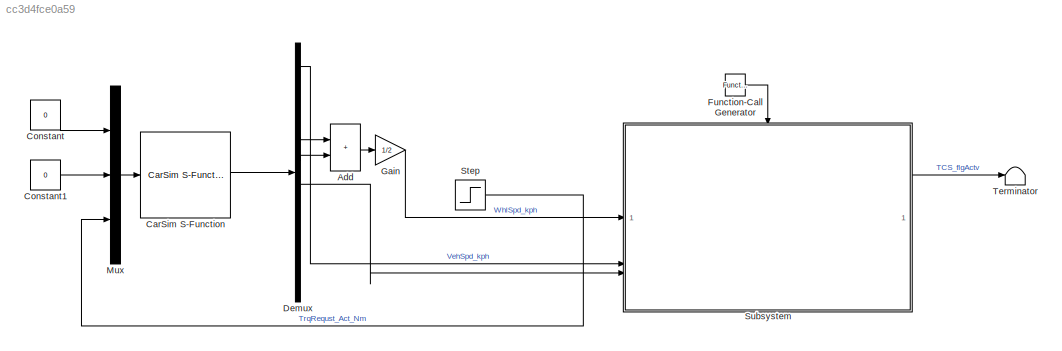
MODEL slx_cc3d4fce0a59
KIND model
CONFIG AbsTol = auto
CONFIG EnableMultiTasking = off
CONFIG FixedStep = 0.01
CONFIG MaxStep = auto
CONFIG MinStep = auto
CONFIG RelTol = 1e-3
CONFIG SampleTimeConstraint = Unconstrained
CONFIG SolverName = FixedStepDiscrete
CONFIG StartTime = 0.0
CONFIG StopTime = 10.0
BLOCK [Sum] Add
  IconShape = rectangular
BLOCK [Reference] CarSim S-Function  REF=Solver_SF/CarSim S-Function
  Priority = 1
  SourceBlock = Solver_SF/CarSim S-Function
  SourceProductName = CarSim S-Function
  SourceType = Vehicle math model library
BLOCK [Constant] Constant
  Value = 0
BLOCK [Constant] Constant1
  Value = 0
BLOCK [Demux] Demux
  Outputs = 10
BLOCK [Reference] Function-Call Generator  REF=simulink/Ports &
Subsystems/Function-Call
Generator
  SourceBlock = simulink/Ports &\nSubsystems/Function-Call\nGenerator
  SourceType = Function-Call Generator
BLOCK [Gain] Gain
  Gain = 1/2
BLOCK [Mux] Mux
  DisplayOption = bar
  Inputs = 3
BLOCK [Step] Step
  After = 80
  SampleTime = 0
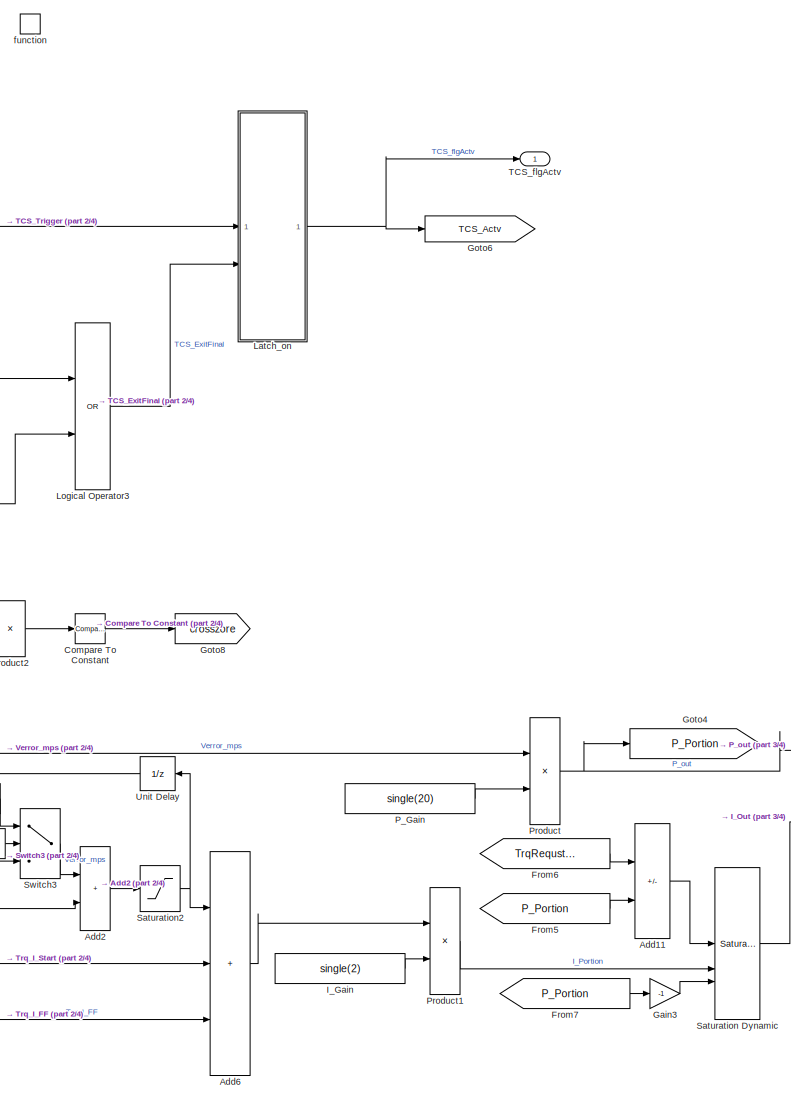
[diagram: Subsystem - part 1/4, center side, full height]
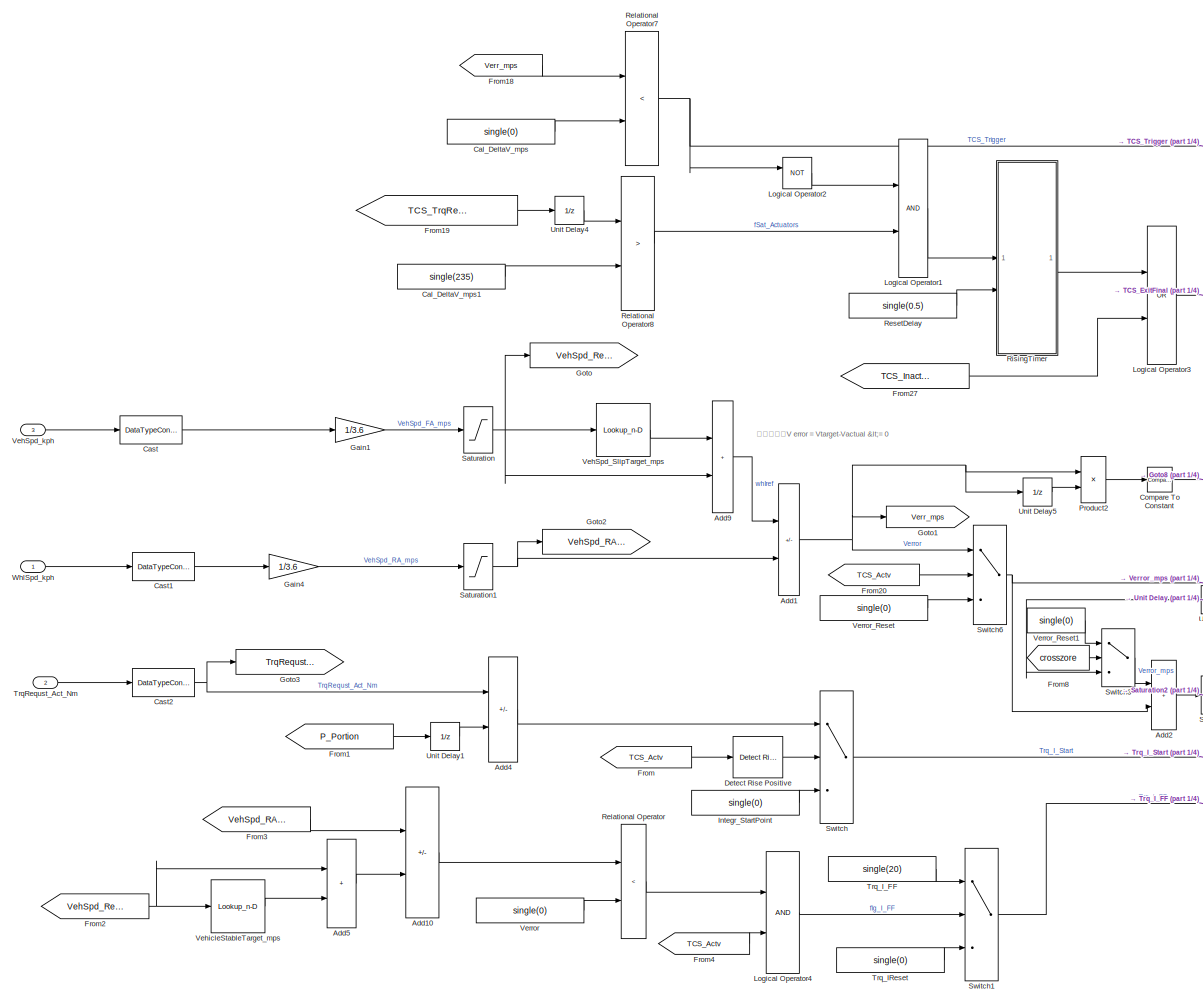
[diagram: Subsystem - part 2/4, left side, full height]
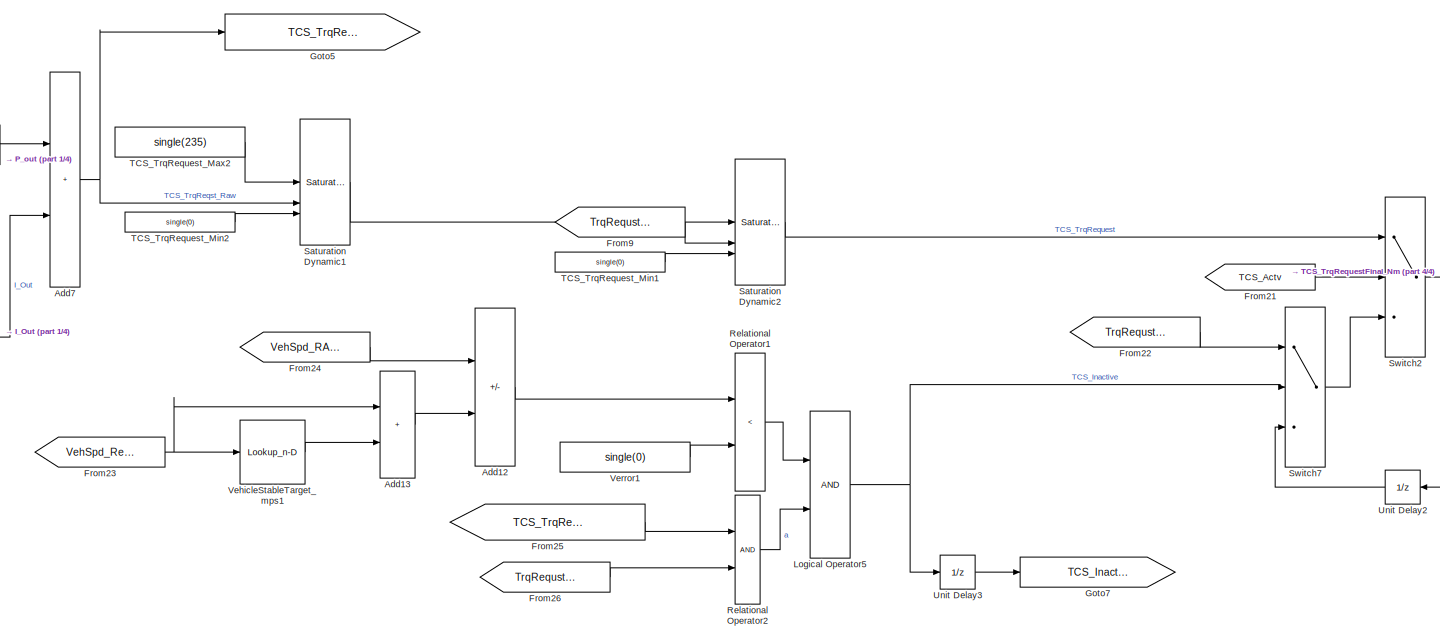
[diagram: Subsystem - part 3/4, bottom right region]
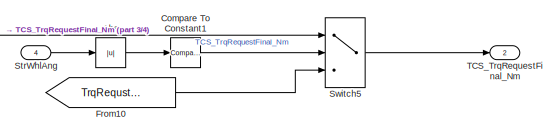
[diagram: Subsystem - part 4/4, bottom right region]
BLOCK [SubSystem] Subsystem
BLOCK [Abs] Subsystem/Abs
  SaturateOnIntegerOverflow = off
BLOCK [Sum] Subsystem/Add1
  IconShape = rectangular
  Inputs = +-
BLOCK [Sum] Subsystem/Add10
  IconShape = rectangular
  Inputs = +-
BLOCK [Sum] Subsystem/Add11
  IconShape = rectangular
  Inputs = +-
BLOCK [Sum] Subsystem/Add12
  IconShape = rectangular
  Inputs = +-
BLOCK [Sum] Subsystem/Add13
  IconShape = rectangular
BLOCK [Sum] Subsystem/Add2
  IconShape = rectangular
BLOCK [Sum] Subsystem/Add4
  IconShape = rectangular
  Inputs = +-
BLOCK [Sum] Subsystem/Add5
  IconShape = rectangular
BLOCK [Sum] Subsystem/Add6
  IconShape = rectangular
  Inputs = +++
BLOCK [Sum] Subsystem/Add7
  IconShape = rectangular
BLOCK [Sum] Subsystem/Add9
  IconShape = rectangular
BLOCK [Constant] Subsystem/Cal_DeltaV_mps
  Value = single(0)
BLOCK [Constant] Subsystem/Cal_DeltaV_mps1
  Value = single(235)
BLOCK [DataTypeConversion] Subsystem/Cast
  OutDataTypeStr = single
  RndMeth = Floor
  SaturateOnIntegerOverflow = off
BLOCK [DataTypeConversion] Subsystem/Cast1
  OutDataTypeStr = single
  RndMeth = Floor
  SaturateOnIntegerOverflow = off
BLOCK [DataTypeConversion] Subsystem/Cast2
  OutDataTypeStr = single
  RndMeth = Floor
  SaturateOnIntegerOverflow = off
BLOCK [Reference] Subsystem/Compare To Constant  REF=simulink/Logic and Bit
Operations/Compare
To Constant
  SourceBlock = simulink/Logic and Bit\nOperations/Compare\nTo Constant
  SourceType = Compare To Constant
BLOCK [Reference] Subsystem/Compare To Constant1  REF=simulink/Logic and Bit
Operations/Compare
To Constant
  SourceBlock = simulink/Logic and Bit\nOperations/Compare\nTo Constant
  SourceType = Compare To Constant
BLOCK [Reference] Subsystem/Detect Rise Positive  REF=simulink/Logic and Bit
Operations/Detect Rise
Positive
  SourceBlock = simulink/Logic and Bit\nOperations/Detect Rise\nPositive
  SourceType = Detect Rise Positive
BLOCK [From] Subsystem/From
  GotoTag = TCS_Actv
BLOCK [From] Subsystem/From1
  GotoTag = P_Portion
BLOCK [From] Subsystem/From10
  GotoTag = TrqRequst_Act_Nm
BLOCK [From] Subsystem/From18
  GotoTag = Verr_mps
BLOCK [From] Subsystem/From19
  GotoTag = TCS_TrqReqstRaw_Nm
BLOCK [From] Subsystem/From2
  GotoTag = VehSpd_Ref_mps
BLOCK [From] Subsystem/From20
  GotoTag = TCS_Actv
BLOCK [From] Subsystem/From21
  GotoTag = TCS_Actv
BLOCK [From] Subsystem/From22
  GotoTag = TrqRequst_Act_Nm
BLOCK [From] Subsystem/From23
  GotoTag = VehSpd_Ref_mps
BLOCK [From] Subsystem/From24
  GotoTag = VehSpd_RA_mps
BLOCK [From] Subsystem/From25
  GotoTag = TCS_TrqReqstRaw_Nm
BLOCK [From] Subsystem/From26
  GotoTag = TrqRequst_Act_Nm
BLOCK [From] Subsystem/From27
  GotoTag = TCS_Inactive
BLOCK [From] Subsystem/From3
  GotoTag = VehSpd_RA_mps
BLOCK [From] Subsystem/From4
  GotoTag = TCS_Actv
BLOCK [From] Subsystem/From5
  GotoTag = P_Portion
BLOCK [From] Subsystem/From6
  GotoTag = TrqRequst_Act_Nm
BLOCK [From] Subsystem/From7
  GotoTag = P_Portion
BLOCK [From] Subsystem/From8
  GotoTag = crosszore
BLOCK [From] Subsystem/From9
  GotoTag = TrqRequst_Act_Nm
BLOCK [Gain] Subsystem/Gain1
  Gain = 1/3.6
BLOCK [Gain] Subsystem/Gain3
  Gain = -1
BLOCK [Gain] Subsystem/Gain4
  Gain = 1/3.6
BLOCK [Goto] Subsystem/Goto
  GotoTag = VehSpd_Ref_mps
BLOCK [Goto] Subsystem/Goto1
  GotoTag = Verr_mps
BLOCK [Goto] Subsystem/Goto2
  GotoTag = VehSpd_RA_mps
BLOCK [Goto] Subsystem/Goto3
  GotoTag = TrqRequst_Act_Nm
BLOCK [Goto] Subsystem/Goto4
  GotoTag = P_Portion
BLOCK [Goto] Subsystem/Goto5
  GotoTag = TCS_TrqReqstRaw_Nm
BLOCK [Goto] Subsystem/Goto6
  GotoTag = TCS_Actv
BLOCK [Goto] Subsystem/Goto7
  GotoTag = TCS_Inactive
BLOCK [Goto] Subsystem/Goto8
  GotoTag = crosszore
BLOCK [Constant] Subsystem/I_Gain
  Value = single(2)
BLOCK [Constant] Subsystem/Integr_StartPoint
  Value = single(0)
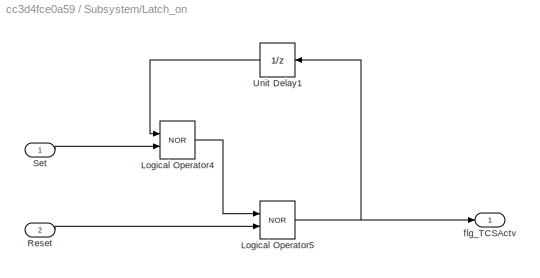
BLOCK [SubSystem] Subsystem/Latch_on
BLOCK [Logic] Subsystem/Latch_on/Logical Operator4
  AllPortsSameDT = off
  Operator = NOR
  OutDataTypeStr = boolean
BLOCK [Logic] Subsystem/Latch_on/Logical Operator5
  AllPortsSameDT = off
  Operator = NOR
  OutDataTypeStr = boolean
BLOCK [Inport] Subsystem/Latch_on/Reset
  Port = 2
BLOCK [Inport] Subsystem/Latch_on/Set
BLOCK [UnitDelay] Subsystem/Latch_on/Unit Delay1
  HasFrameUpgradeWarning = on
  SampleTime = -1
BLOCK [Outport] Subsystem/Latch_on/flg_TCSActv
BLOCK [Logic] Subsystem/Logical Operator1
  AllPortsSameDT = off
  OutDataTypeStr = boolean
BLOCK [Logic] Subsystem/Logical Operator2
  AllPortsSameDT = off
  Operator = NOT
  OutDataTypeStr = boolean
BLOCK [Logic] Subsystem/Logical Operator3
  AllPortsSameDT = off
  Operator = OR
  OutDataTypeStr = boolean
BLOCK [Logic] Subsystem/Logical Operator4
  AllPortsSameDT = off
  OutDataTypeStr = boolean
BLOCK [Logic] Subsystem/Logical Operator5
  AllPortsSameDT = off
  OutDataTypeStr = boolean
BLOCK [Constant] Subsystem/P_Gain
  Value = single(20)
BLOCK [Product] Subsystem/Product
BLOCK [Product] Subsystem/Product1
BLOCK [Product] Subsystem/Product2
BLOCK [RelationalOperator] Subsystem/Relational Operator
  InputSameDT = off
  Operator = <
  OutDataTypeStr = boolean
  RndMeth = Simplest
BLOCK [RelationalOperator] Subsystem/Relational Operator1
  InputSameDT = off
  Operator = <
  OutDataTypeStr = boolean
  RndMeth = Simplest
BLOCK [RelationalOperator] Subsystem/Relational Operator2
  InputSameDT = off
  OutDataTypeStr = boolean
  RndMeth = Simplest
BLOCK [RelationalOperator] Subsystem/Relational Operator7
  InputSameDT = off
  Operator = <
  OutDataTypeStr = boolean
  RndMeth = Simplest
BLOCK [RelationalOperator] Subsystem/Relational Operator8
  InputSameDT = off
  Operator = >
  OutDataTypeStr = boolean
  RndMeth = Simplest
BLOCK [Constant] Subsystem/ResetDelay
  Value = single(0.5)
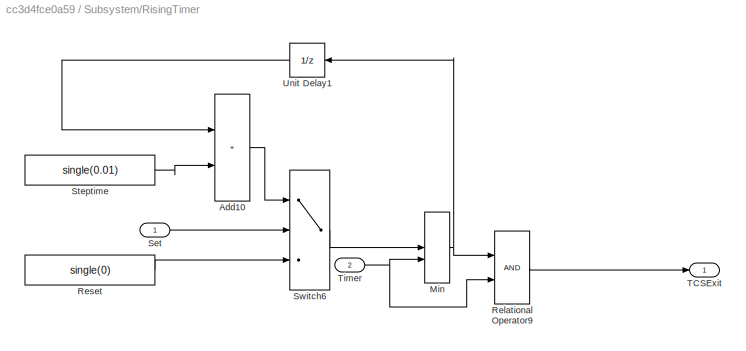
BLOCK [SubSystem] Subsystem/RisingTimer
BLOCK [Sum] Subsystem/RisingTimer/Add10
  IconShape = rectangular
BLOCK [MinMax] Subsystem/RisingTimer/Min
  Inputs = 2
BLOCK [RelationalOperator] Subsystem/RisingTimer/Relational Operator9
  InputSameDT = off
  OutDataTypeStr = boolean
  RndMeth = Simplest
BLOCK [Constant] Subsystem/RisingTimer/Reset
  Value = single(0)
BLOCK [Inport] Subsystem/RisingTimer/Set
BLOCK [Constant] Subsystem/RisingTimer/Steptime
  Value = single(0.01)
BLOCK [Switch] Subsystem/RisingTimer/Switch6
  Criteria = u2 ~= 0
  InputSameDT = off
  SaturateOnIntegerOverflow = off
BLOCK [Outport] Subsystem/RisingTimer/TCSExit
BLOCK [Inport] Subsystem/RisingTimer/Timer
  Port = 2
BLOCK [UnitDelay] Subsystem/RisingTimer/Unit Delay1
  HasFrameUpgradeWarning = on
  SampleTime = -1
BLOCK [Saturate] Subsystem/Saturation
  LowerLimit = 0
  UpperLimit = 40
BLOCK [Reference] Subsystem/Saturation Dynamic  REF=simulink/Discontinuities/Saturation
Dynamic
  SourceBlock = simulink/Discontinuities/Saturation\nDynamic
  SourceType = Saturation Dynamic
BLOCK [Reference] Subsystem/Saturation Dynamic1  REF=simulink/Discontinuities/Saturation
Dynamic
  SourceBlock = simulink/Discontinuities/Saturation\nDynamic
  SourceType = Saturation Dynamic
BLOCK [Reference] Subsystem/Saturation Dynamic2  REF=simulink/Discontinuities/Saturation
Dynamic
  SourceBlock = simulink/Discontinuities/Saturation\nDynamic
  SourceType = Saturation Dynamic
BLOCK [Saturate] Subsystem/Saturation1
  LowerLimit = 0
  UpperLimit = 50
BLOCK [Saturate] Subsystem/Saturation2
  LowerLimit = -100
  UpperLimit = 400
BLOCK [Inport] Subsystem/StrWhlAng
  Port = 4
BLOCK [Switch] Subsystem/Switch
  Criteria = u2 ~= 0
  InputSameDT = off
  SaturateOnIntegerOverflow = off
BLOCK [Switch] Subsystem/Switch1
  Criteria = u2 ~= 0
  InputSameDT = off
  SaturateOnIntegerOverflow = off
BLOCK [Switch] Subsystem/Switch2
  Criteria = u2 ~= 0
  InputSameDT = off
  SaturateOnIntegerOverflow = off
BLOCK [Switch] Subsystem/Switch3
  Criteria = u2 ~= 0
  InputSameDT = off
  SaturateOnIntegerOverflow = off
BLOCK [Switch] Subsystem/Switch5
  Criteria = u2 ~= 0
  InputSameDT = off
  SaturateOnIntegerOverflow = off
BLOCK [Switch] Subsystem/Switch6
  Criteria = u2 ~= 0
  InputSameDT = off
  SaturateOnIntegerOverflow = off
BLOCK [Switch] Subsystem/Switch7
  Criteria = u2 ~= 0
  InputSameDT = off
  SaturateOnIntegerOverflow = off
BLOCK [Outport] Subsystem/TCS_TrqRequestFinal_Nm
  Port = 2
BLOCK [Constant] Subsystem/TCS_TrqRequest_Max2
  Value = single(235)
BLOCK [Constant] Subsystem/TCS_TrqRequest_Min1
  Value = single(0)
BLOCK [Constant] Subsystem/TCS_TrqRequest_Min2
  Value = single(0)
BLOCK [Outport] Subsystem/TCS_flgActv
BLOCK [Inport] Subsystem/TrqRequst_Act_Nm
  Port = 2
BLOCK [Constant] Subsystem/Trq_IReset
  Value = single(0)
BLOCK [Constant] Subsystem/Trq_I_FF
  Value = single(20)
BLOCK [UnitDelay] Subsystem/Unit Delay
  HasFrameUpgradeWarning = on
  SampleTime = -1
BLOCK [UnitDelay] Subsystem/Unit Delay1
  HasFrameUpgradeWarning = on
  SampleTime = -1
BLOCK [UnitDelay] Subsystem/Unit Delay2
  HasFrameUpgradeWarning = on
  SampleTime = -1
BLOCK [UnitDelay] Subsystem/Unit Delay3
  HasFrameUpgradeWarning = on
  SampleTime = -1
BLOCK [UnitDelay] Subsystem/Unit Delay4
  HasFrameUpgradeWarning = on
  SampleTime = -1
BLOCK [UnitDelay] Subsystem/Unit Delay5
  HasFrameUpgradeWarning = on
  SampleTime = -1
BLOCK [Lookup_n-D] Subsystem/VehSpd_SlipTarget_mps
  BreakpointsForDimension1 = [0 3 25 30]
  ExtrapMethod = Clip
  InputPortMap = u0
  InternalRulePriority = Speed
  NumberOfTableDimensions = 1
  RndMeth = Simplest
  Table = [0.2 0.2 1.5 1.5]
BLOCK [Inport] Subsystem/VehSpd_kph
  Port = 3
BLOCK [Lookup_n-D] Subsystem/VehicleStableTarget_mps
  BreakpointsForDimension1 = [0,3,25,30]
  ExtrapMethod = Clip
  InputPortMap = u0
  InternalRulePriority = Speed
  NumberOfTableDimensions = 1
  RndMeth = Simplest
  Table = [0.4,0.4,1.2,1.2]
BLOCK [Lookup_n-D] Subsystem/VehicleStableTarget_mps1
  BreakpointsForDimension1 = [0,3,25,30]
  ExtrapMethod = Clip
  InputPortMap = u0
  InternalRulePriority = Speed
  NumberOfTableDimensions = 1
  RndMeth = Simplest
  Table = [0.2,0.2,1.2,1.2]
BLOCK [Constant] Subsystem/Verror
  Value = single(0)
BLOCK [Constant] Subsystem/Verror1
  Value = single(0)
BLOCK [Constant] Subsystem/Verror_Reset
  Value = single(0)
BLOCK [Constant] Subsystem/Verror_Reset1
  Value = single(0)
BLOCK [Inport] Subsystem/WhlSpd_kph
BLOCK [TriggerPort] Subsystem/function
  StatesWhenEnabling = held
  TriggerType = function-call
  VariantControl = (inherit)
BLOCK [Terminator] Terminator
ANNOTATION Subsystem: 特殊设置：V error = Vtarget-Vactual <= 0
LINE Add:1 -> Gain:1
LINE CarSim S-Function:1 -> Demux:1
LINE Constant1:1 -> Mux:2
LINE Constant:1 -> Mux:1
LINE Demux:1 -> Subsystem:3
LINE Demux:4 -> Add:1
LINE Demux:5 -> Add:2
LINE Demux:6 -> Subsystem:4
LINE Function-Call Generator:1 -> Subsystem:trigger
LINE Gain:1 -> Subsystem:1
LINE Mux:1 -> CarSim S-Function:1
LINE Step:1 -> Mux:3
LINE Subsystem/Abs:1 -> Subsystem/Compare To Constant1:1
LINE Subsystem/Add10:1 -> Subsystem/Relational Operator:1
LINE Subsystem/Add11:1 -> Subsystem/Saturation Dynamic:1
LINE Subsystem/Add12:1 -> Subsystem/Relational Operator1:1
LINE Subsystem/Add13:1 -> Subsystem/Add12:2
NET Subsystem/Add1:1 -> Subsystem/Goto1:1, Subsystem/Product2:1, Subsystem/Switch6:1, Subsystem/Unit Delay5:1
LINE Subsystem/Add2:1 -> Subsystem/Saturation2:1
LINE Subsystem/Add4:1 -> Subsystem/Switch:1
LINE Subsystem/Add5:1 -> Subsystem/Add10:2
LINE Subsystem/Add6:1 -> Subsystem/Product1:1
NET Subsystem/Add7:1 -> Subsystem/Goto5:1, Subsystem/Saturation Dynamic1:2
LINE Subsystem/Add9:1 -> Subsystem/Add1:1
LINE Subsystem/Cal_DeltaV_mps1:1 -> Subsystem/Relational Operator8:2
LINE Subsystem/Cal_DeltaV_mps:1 -> Subsystem/Relational Operator7:2
LINE Subsystem/Cast1:1 -> Subsystem/Gain4:1
NET Subsystem/Cast2:1 -> Subsystem/Add4:1, Subsystem/Goto3:1
LINE Subsystem/Cast:1 -> Subsystem/Gain1:1
LINE Subsystem/Compare To Constant1:1 -> Subsystem/Switch5:2
LINE Subsystem/Compare To Constant:1 -> Subsystem/Goto8:1
LINE Subsystem/Detect Rise Positive:1 -> Subsystem/Switch:2
LINE Subsystem/From10:1 -> Subsystem/Switch5:3
LINE Subsystem/From18:1 -> Subsystem/Relational Operator7:1
LINE Subsystem/From19:1 -> Subsystem/Unit Delay4:1
LINE Subsystem/From1:1 -> Subsystem/Unit Delay1:1
LINE Subsystem/From20:1 -> Subsystem/Switch6:2
LINE Subsystem/From21:1 -> Subsystem/Switch2:2
LINE Subsystem/From22:1 -> Subsystem/Switch7:1
NET Subsystem/From23:1 -> Subsystem/Add13:1, Subsystem/VehicleStableTarget_mps1:1
LINE Subsystem/From24:1 -> Subsystem/Add12:1
LINE Subsystem/From25:1 -> Subsystem/Relational Operator2:1
LINE Subsystem/From26:1 -> Subsystem/Relational Operator2:2
LINE Subsystem/From27:1 -> Subsystem/Logical Operator3:2
NET Subsystem/From2:1 -> Subsystem/Add5:1, Subsystem/VehicleStableTarget_mps:1
LINE Subsystem/From3:1 -> Subsystem/Add10:1
LINE Subsystem/From4:1 -> Subsystem/Logical Operator4:2
LINE Subsystem/From5:1 -> Subsystem/Add11:2
LINE Subsystem/From6:1 -> Subsystem/Add11:1
LINE Subsystem/From7:1 -> Subsystem/Gain3:1
LINE Subsystem/From8:1 -> Subsystem/Switch3:2
LINE Subsystem/From9:1 -> Subsystem/Saturation Dynamic2:2
LINE Subsystem/From:1 -> Subsystem/Detect Rise Positive:1
LINE Subsystem/Gain1:1 -> Subsystem/Saturation:1
LINE Subsystem/Gain3:1 -> Subsystem/Saturation Dynamic:3
LINE Subsystem/Gain4:1 -> Subsystem/Saturation1:1
LINE Subsystem/I_Gain:1 -> Subsystem/Product1:2
LINE Subsystem/Integr_StartPoint:1 -> Subsystem/Switch:3
LINE Subsystem/Latch_on/Logical Operator4:1 -> Subsystem/Latch_on/Logical Operator5:1
NET Subsystem/Latch_on/Logical Operator5:1 -> Subsystem/Latch_on/Unit Delay1:1, Subsystem/Latch_on/flg_TCSActv:1
LINE Subsystem/Latch_on/Reset:1 -> Subsystem/Latch_on/Logical Operator5:2
LINE Subsystem/Latch_on/Set:1 -> Subsystem/Latch_on/Logical Operator4:2
LINE Subsystem/Latch_on/Unit Delay1:1 -> Subsystem/Latch_on/Logical Operator4:1
NET Subsystem/Latch_on:1 -> Subsystem/Goto6:1, Subsystem/TCS_flgActv:1
LINE Subsystem/Logical Operator1:1 -> Subsystem/RisingTimer:1
LINE Subsystem/Logical Operator2:1 -> Subsystem/Logical Operator1:1
LINE Subsystem/Logical Operator3:1 -> Subsystem/Latch_on:2
LINE Subsystem/Logical Operator4:1 -> Subsystem/Switch1:2
NET Subsystem/Logical Operator5:1 -> Subsystem/Switch7:2, Subsystem/Unit Delay3:1
LINE Subsystem/P_Gain:1 -> Subsystem/Product:2
LINE Subsystem/Product1:1 -> Subsystem/Saturation Dynamic:2
LINE Subsystem/Product2:1 -> Subsystem/Compare To Constant:1
NET Subsystem/Product:1 -> Subsystem/Add7:1, Subsystem/Goto4:1
LINE Subsystem/Relational Operator1:1 -> Subsystem/Logical Operator5:1
LINE Subsystem/Relational Operator2:1 -> Subsystem/Logical Operator5:2
NET Subsystem/Relational Operator7:1 -> Subsystem/Latch_on:1, Subsystem/Logical Operator2:1
LINE Subsystem/Relational Operator8:1 -> Subsystem/Logical Operator1:2
LINE Subsystem/Relational Operator:1 -> Subsystem/Logical Operator4:1
LINE Subsystem/ResetDelay:1 -> Subsystem/RisingTimer:2
LINE Subsystem/RisingTimer/Add10:1 -> Subsystem/RisingTimer/Switch6:1
NET Subsystem/RisingTimer/Min:1 -> Subsystem/RisingTimer/Relational Operator9:1, Subsystem/RisingTimer/Unit Delay1:1
LINE Subsystem/RisingTimer/Relational Operator9:1 -> Subsystem/RisingTimer/TCSExit:1
LINE Subsystem/RisingTimer/Reset:1 -> Subsystem/RisingTimer/Switch6:3
LINE Subsystem/RisingTimer/Set:1 -> Subsystem/RisingTimer/Switch6:2
LINE Subsystem/RisingTimer/Steptime:1 -> Subsystem/RisingTimer/Add10:2
LINE Subsystem/RisingTimer/Switch6:1 -> Subsystem/RisingTimer/Min:1
NET Subsystem/RisingTimer/Timer:1 -> Subsystem/RisingTimer/Min:2, Subsystem/RisingTimer/Relational Operator9:2
LINE Subsystem/RisingTimer/Unit Delay1:1 -> Subsystem/RisingTimer/Add10:1
LINE Subsystem/RisingTimer:1 -> Subsystem/Logical Operator3:1
LINE Subsystem/Saturation Dynamic1:1 -> Subsystem/Saturation Dynamic2:1
LINE Subsystem/Saturation Dynamic2:1 -> Subsystem/Switch2:1
LINE Subsystem/Saturation Dynamic:1 -> Subsystem/Add7:2
NET Subsystem/Saturation1:1 -> Subsystem/Add1:2, Subsystem/Goto2:1
NET Subsystem/Saturation2:1 -> Subsystem/Add6:1, Subsystem/Unit Delay:1
NET Subsystem/Saturation:1 -> Subsystem/Add9:2, Subsystem/Goto:1, Subsystem/VehSpd_SlipTarget_mps:1
LINE Subsystem/StrWhlAng:1 -> Subsystem/Abs:1
LINE Subsystem/Switch1:1 -> Subsystem/Add6:3
NET Subsystem/Switch2:1 -> Subsystem/Switch5:1, Subsystem/Unit Delay2:1
LINE Subsystem/Switch3:1 -> Subsystem/Add2:1
LINE Subsystem/Switch5:1 -> Subsystem/TCS_TrqRequestFinal_Nm:1
NET Subsystem/Switch6:1 -> Subsystem/Add2:2, Subsystem/Product:1
LINE Subsystem/Switch7:1 -> Subsystem/Switch2:3
LINE Subsystem/Switch:1 -> Subsystem/Add6:2
LINE Subsystem/TCS_TrqRequest_Max2:1 -> Subsystem/Saturation Dynamic1:1
LINE Subsystem/TCS_TrqRequest_Min1:1 -> Subsystem/Saturation Dynamic2:3
LINE Subsystem/TCS_TrqRequest_Min2:1 -> Subsystem/Saturation Dynamic1:3
LINE Subsystem/TrqRequst_Act_Nm:1 -> Subsystem/Cast2:1
LINE Subsystem/Trq_IReset:1 -> Subsystem/Switch1:3
LINE Subsystem/Trq_I_FF:1 -> Subsystem/Switch1:1
LINE Subsystem/Unit Delay1:1 -> Subsystem/Add4:2
LINE Subsystem/Unit Delay2:1 -> Subsystem/Switch7:3
LINE Subsystem/Unit Delay3:1 -> Subsystem/Goto7:1
LINE Subsystem/Unit Delay4:1 -> Subsystem/Relational Operator8:1
LINE Subsystem/Unit Delay5:1 -> Subsystem/Product2:2
LINE Subsystem/Unit Delay:1 -> Subsystem/Switch3:3
LINE Subsystem/VehSpd_SlipTarget_mps:1 -> Subsystem/Add9:1
LINE Subsystem/VehSpd_kph:1 -> Subsystem/Cast:1
LINE Subsystem/VehicleStableTarget_mps1:1 -> Subsystem/Add13:2
LINE Subsystem/VehicleStableTarget_mps:1 -> Subsystem/Add5:2
LINE Subsystem/Verror1:1 -> Subsystem/Relational Operator1:2
LINE Subsystem/Verror:1 -> Subsystem/Relational Operator:2
LINE Subsystem/Verror_Reset1:1 -> Subsystem/Switch3:1
LINE Subsystem/Verror_Reset:1 -> Subsystem/Switch6:3
LINE Subsystem/WhlSpd_kph:1 -> Subsystem/Cast1:1
LINE Subsystem:1 -> Terminator:1
note: NET lines group one-source signal fan-out (src -> all destinations, sorted); 1:1 wires keep LINE
